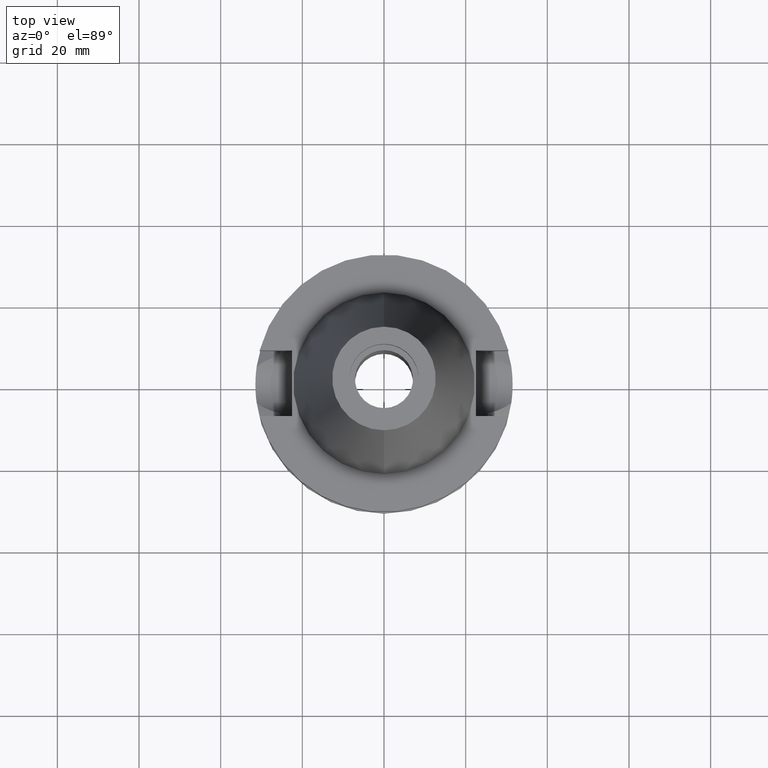
[diagram: clean part render]
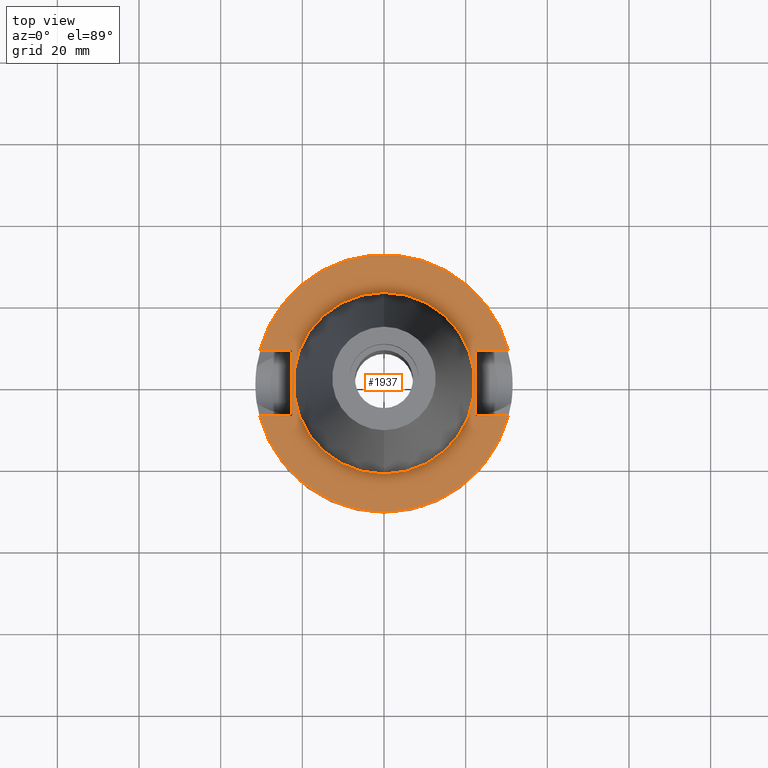
[diagram: same view with one face highlighted and labeled with its STEP entity id]
A machine part, top view. The second image highlights one B-rep face of the part: STEP entity #1937.
In plain terms, the highlighted planar face has unit normal (0, 0, -1).
Its self-contained STEP definition (entity closure, byte-faithful):
#24 = DIRECTION ( 'NONE',  ( 0.0000000000000000000, 0.0000000000000000000, -1.000000000000000000 ) ) ;
#25 = VERTEX_POINT ( 'NONE', #2583 ) ;
#99 = DIRECTION ( 'NONE',  ( 0.0000000000000000000, 1.000000000000000000, 0.0000000000000000000 ) ) ;
#119 = DIRECTION ( 'NONE',  ( 1.000000000000000000, -3.506251283225999947E-14, 0.0000000000000000000 ) ) ;
#121 = DIRECTION ( 'NONE',  ( 1.000000000000000000, 3.595582526110999949E-14, 0.0000000000000000000 ) ) ;
#131 = CARTESIAN_POINT ( 'NONE',  ( 0.0000000000000000000, -22.22500000000000142, -1.000000000000000000 ) ) ;
#142 = PLANE ( 'NONE',  #1023 ) ;
#190 = CARTESIAN_POINT ( 'NONE',  ( 0.0000000000000000000, 0.0000000000000000000, -1.000000000000000000 ) ) ;
#234 = CARTESIAN_POINT ( 'NONE',  ( 22.50000000000000000, 8.050000000000000711, -1.000000000000000000 ) ) ;
#253 = AXIS2_PLACEMENT_3D ( 'NONE', #1399, #24, #2849 ) ;
#260 = CARTESIAN_POINT ( 'NONE',  ( -22.50000000000000000, 8.050000000000000711, -1.000000000000000000 ) ) ;
#263 = CARTESIAN_POINT ( 'NONE',  ( -30.45402272279000044, -8.050000000000000711, -1.000000000000000000 ) ) ;
#266 = DIRECTION ( 'NONE',  ( 0.0000000000000000000, -1.000000000000000000, 0.0000000000000000000 ) ) ;
#310 = AXIS2_PLACEMENT_3D ( 'NONE', #727, #964, #266 ) ;
#383 = DIRECTION ( 'NONE',  ( 0.0000000000000000000, 0.0000000000000000000, -1.000000000000000000 ) ) ;
#391 = EDGE_CURVE ( 'NONE', #1287, #1608, #2289, .T. ) ;
#554 = LINE ( 'NONE', #263, #1109 ) ;
#578 = EDGE_CURVE ( 'NONE', #25, #1179, #1285, .T. ) ;
#579 = CARTESIAN_POINT ( 'NONE',  ( 0.0000000000000000000, 22.22500000000000142, -1.000000000000000000 ) ) ;
#711 = VERTEX_POINT ( 'NONE', #2092 ) ;
#727 = CARTESIAN_POINT ( 'NONE',  ( 0.0000000000000000000, 0.0000000000000000000, -1.000000000000000000 ) ) ;
#738 = VERTEX_POINT ( 'NONE', #260 ) ;
#796 = ORIENTED_EDGE ( 'NONE', *, *, #1741, .F. ) ;
#832 = LINE ( 'NONE', #2455, #1262 ) ;
#898 = DIRECTION ( 'NONE',  ( 0.0000000000000000000, -1.000000000000000000, 0.0000000000000000000 ) ) ;
#917 = EDGE_LOOP ( 'NONE', ( #3030, #2362, #1651, #1154, #1004, #1024, #1140, #796 ) ) ;
#940 = CARTESIAN_POINT ( 'NONE',  ( 22.50000000000000000, 8.050000000000000711, -1.000000000000000000 ) ) ;
#964 = DIRECTION ( 'NONE',  ( 0.0000000000000000000, 0.0000000000000000000, 1.000000000000000000 ) ) ;
#985 = VERTEX_POINT ( 'NONE', #940 ) ;
#1004 = ORIENTED_EDGE ( 'NONE', *, *, #1363, .T. ) ;
#1023 = AXIS2_PLACEMENT_3D ( 'NONE', #190, #1137, #2084 ) ;
#1024 = ORIENTED_EDGE ( 'NONE', *, *, #391, .F. ) ;
#1037 = CARTESIAN_POINT ( 'NONE',  ( 30.45402272279000044, 8.050000000000000711, -1.000000000000000000 ) ) ;
#1109 = VECTOR ( 'NONE', #1237, 1000.000000000000000 ) ;
#1137 = DIRECTION ( 'NONE',  ( 0.0000000000000000000, 0.0000000000000000000, -1.000000000000000000 ) ) ;
#1140 = ORIENTED_EDGE ( 'NONE', *, *, #2234, .T. ) ;
#1154 = ORIENTED_EDGE ( 'NONE', *, *, #3003, .F. ) ;
#1179 = VERTEX_POINT ( 'NONE', #1837 ) ;
#1230 = EDGE_CURVE ( 'NONE', #2597, #711, #554, .T. ) ;
#1237 = DIRECTION ( 'NONE',  ( 1.000000000000000000, -3.550916904668000126E-14, 0.0000000000000000000 ) ) ;
#1262 = VECTOR ( 'NONE', #2937, 1000.000000000000000 ) ;
#1285 = LINE ( 'NONE', #2254, #1344 ) ;
#1287 = VERTEX_POINT ( 'NONE', #2989 ) ;
#1344 = VECTOR ( 'NONE', #121, 1000.000000000000000 ) ;
#1361 = CIRCLE ( 'NONE', #1861, 31.50000000000000000 ) ;
#1363 = EDGE_CURVE ( 'NONE', #985, #1608, #2734, .T. ) ;
#1399 = CARTESIAN_POINT ( 'NONE',  ( 0.0000000000000000000, 0.0000000000000000000, -1.000000000000000000 ) ) ;
#1407 = VECTOR ( 'NONE', #119, 1000.000000000000000 ) ;
#1532 = EDGE_CURVE ( 'NONE', #2409, #2290, #2251, .T. ) ;
#1573 = CARTESIAN_POINT ( 'NONE',  ( 22.50000000000000000, 8.050000000000000711, -1.000000000000000000 ) ) ;
#1575 = CARTESIAN_POINT ( 'NONE',  ( 0.0000000000000000000, 0.0000000000000000000, -1.000000000000000000 ) ) ;
#1607 = LINE ( 'NONE', #2010, #2695 ) ;
#1608 = VERTEX_POINT ( 'NONE', #1037 ) ;
#1651 = ORIENTED_EDGE ( 'NONE', *, *, #578, .F. ) ;
#1741 = EDGE_CURVE ( 'NONE', #711, #738, #1607, .T. ) ;
#1747 = EDGE_CURVE ( 'NONE', #1179, #2597, #1361, .T. ) ;
#1816 = CARTESIAN_POINT ( 'NONE',  ( 0.0000000000000000000, 0.0000000000000000000, -1.000000000000000000 ) ) ;
#1823 = EDGE_CURVE ( 'NONE', #2290, #2409, #3031, .T. ) ;
#1837 = CARTESIAN_POINT ( 'NONE',  ( 30.45402272279000044, -8.050000000000000711, -1.000000000000000000 ) ) ;
#1861 = AXIS2_PLACEMENT_3D ( 'NONE', #1575, #383, #3002 ) ;
#1937 = ADVANCED_FACE ( 'NONE', ( #2742, #2041 ), #142, .F. ) ;
#2010 = CARTESIAN_POINT ( 'NONE',  ( -22.50000000000000000, -8.050000000000000711, -1.000000000000000000 ) ) ;
#2041 = FACE_BOUND ( 'NONE', #2175, .T. ) ;
#2065 = DIRECTION ( 'NONE',  ( 0.0000000000000000000, 1.000000000000000000, 0.0000000000000000000 ) ) ;
#2084 = DIRECTION ( 'NONE',  ( 0.0000000000000000000, -1.000000000000000000, 0.0000000000000000000 ) ) ;
#2092 = CARTESIAN_POINT ( 'NONE',  ( -22.50000000000000000, -8.050000000000000711, -1.000000000000000000 ) ) ;
#2106 = VECTOR ( 'NONE', #898, 1000.000000000000000 ) ;
#2175 = EDGE_LOOP ( 'NONE', ( #2448, #2220 ) ) ;
#2220 = ORIENTED_EDGE ( 'NONE', *, *, #1532, .F. ) ;
#2232 = DIRECTION ( 'NONE',  ( 0.0000000000000000000, 0.0000000000000000000, 1.000000000000000000 ) ) ;
#2234 = EDGE_CURVE ( 'NONE', #1287, #738, #832, .T. ) ;
#2251 = CIRCLE ( 'NONE', #310, 22.22500000000000142 ) ;
#2254 = CARTESIAN_POINT ( 'NONE',  ( 22.50000000000000000, -8.050000000000000711, -1.000000000000000000 ) ) ;
#2289 = CIRCLE ( 'NONE', #253, 31.50000000000000000 ) ;
#2290 = VERTEX_POINT ( 'NONE', #579 ) ;
#2352 = AXIS2_PLACEMENT_3D ( 'NONE', #1816, #2232, #99 ) ;
#2362 = ORIENTED_EDGE ( 'NONE', *, *, #1747, .F. ) ;
#2409 = VERTEX_POINT ( 'NONE', #131 ) ;
#2448 = ORIENTED_EDGE ( 'NONE', *, *, #1823, .F. ) ;
#2455 = CARTESIAN_POINT ( 'NONE',  ( -30.45402272279000044, 8.050000000000000711, -1.000000000000000000 ) ) ;
#2583 = CARTESIAN_POINT ( 'NONE',  ( 22.50000000000000000, -8.050000000000000711, -1.000000000000000000 ) ) ;
#2597 = VERTEX_POINT ( 'NONE', #2825 ) ;
#2695 = VECTOR ( 'NONE', #2065, 1000.000000000000000 ) ;
#2734 = LINE ( 'NONE', #1573, #1407 ) ;
#2742 = FACE_OUTER_BOUND ( 'NONE', #917, .T. ) ;
#2820 = LINE ( 'NONE', #234, #2106 ) ;
#2825 = CARTESIAN_POINT ( 'NONE',  ( -30.45402272279000044, -8.050000000000000711, -1.000000000000000000 ) ) ;
#2849 = DIRECTION ( 'NONE',  ( 0.0000000000000000000, 1.000000000000000000, 0.0000000000000000000 ) ) ;
#2937 = DIRECTION ( 'NONE',  ( 1.000000000000000000, 3.550916904668000126E-14, 0.0000000000000000000 ) ) ;
#2989 = CARTESIAN_POINT ( 'NONE',  ( -30.45402272279000044, 8.050000000000000711, -1.000000000000000000 ) ) ;
#3002 = DIRECTION ( 'NONE',  ( 0.0000000000000000000, -1.000000000000000000, 0.0000000000000000000 ) ) ;
#3003 = EDGE_CURVE ( 'NONE', #985, #25, #2820, .T. ) ;
#3030 = ORIENTED_EDGE ( 'NONE', *, *, #1230, .F. ) ;
#3031 = CIRCLE ( 'NONE', #2352, 22.22500000000000142 ) ;